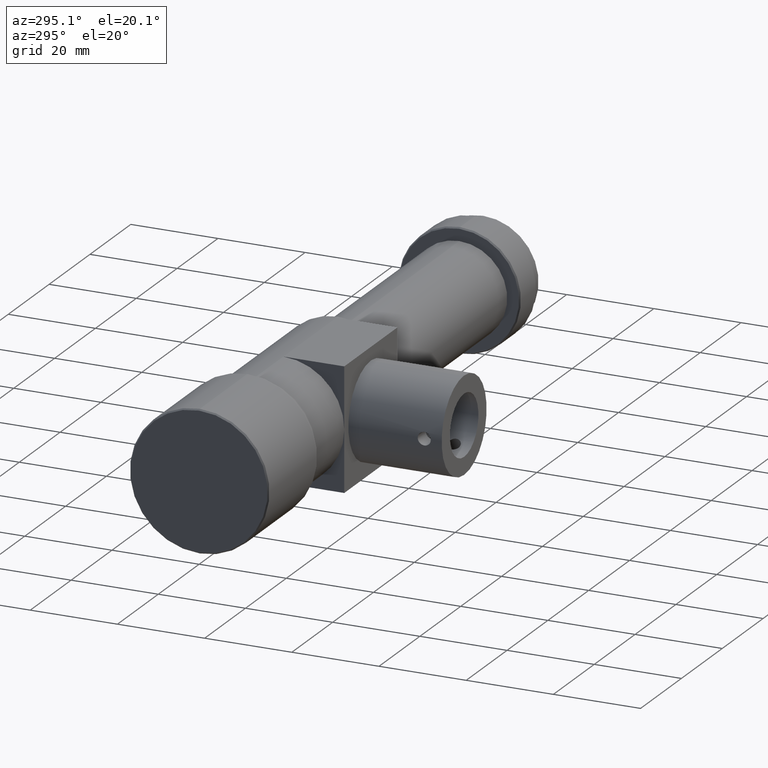
[diagram: clean part render]
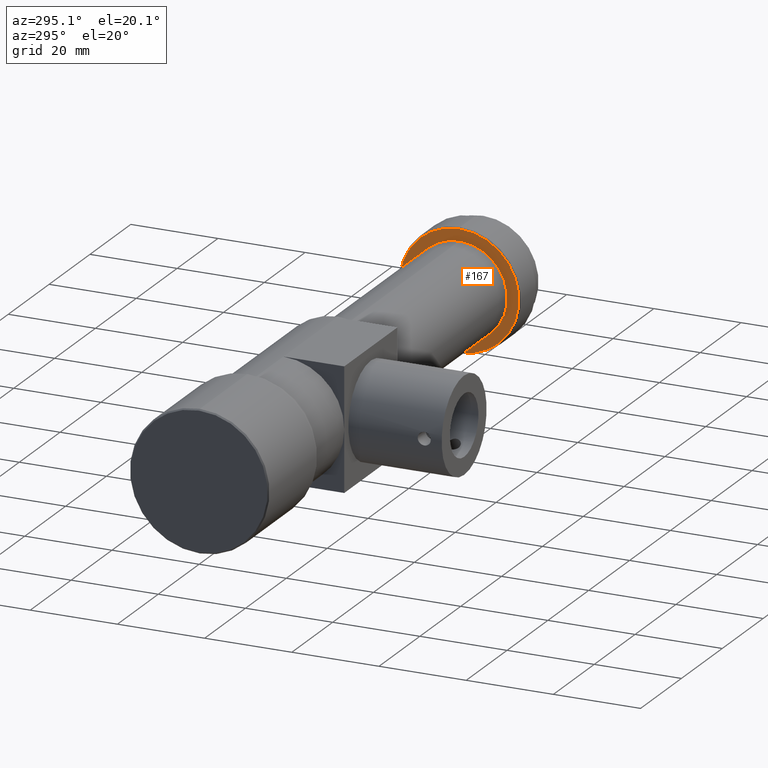
[diagram: same view with one face highlighted and labeled with its STEP entity id]
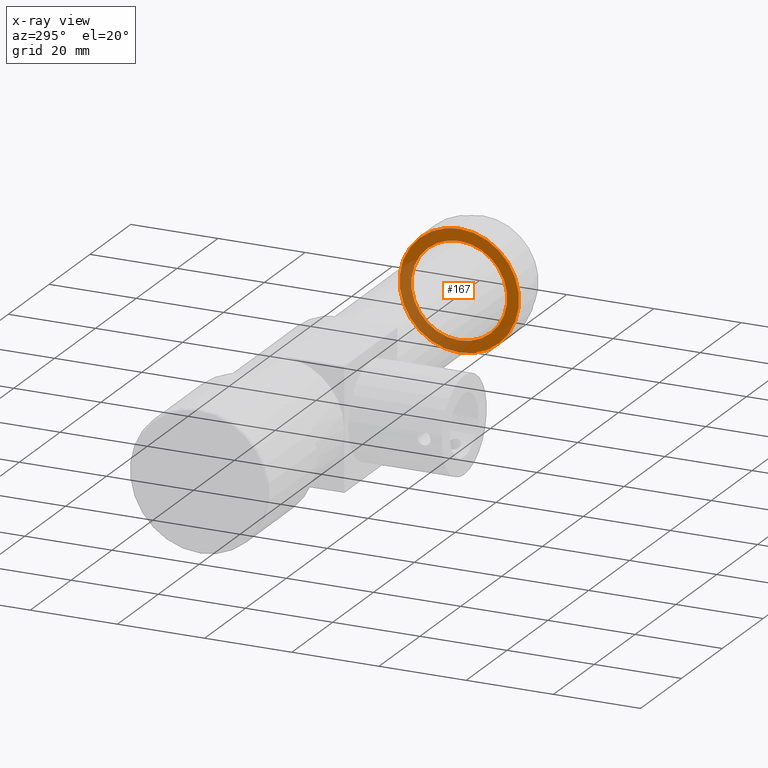
[diagram: x-ray of the same camera — body ghosted, the highlighted face saturated]
A machine part, auxiliary view. The second image highlights one B-rep face of the part: STEP entity #167.
The next image is the same camera in x-ray: the body ghosted, the highlighted face saturated — about 34% of this face is hidden behind the body in this view.
In plain terms, the highlighted planar face has unit normal (1, 0, 0).
Its self-contained STEP definition (entity closure, byte-faithful):
#167 = ADVANCED_FACE ( 'NONE', ( #884, #232 ), #1416, .F. ) ;
#232 = FACE_OUTER_BOUND ( 'NONE', #1790, .T. ) ;
#339 = ORIENTED_EDGE ( 'NONE', *, *, #1321, .F. ) ;
#346 = VERTEX_POINT ( 'NONE', #1149 ) ;
#471 = CARTESIAN_POINT ( 'NONE',  ( 127.3999999999999900, 1.347111479062088600E-015, -11.00000000000000000 ) ) ;
#503 = VERTEX_POINT ( 'NONE', #1379 ) ;
#517 = CARTESIAN_POINT ( 'NONE',  ( 127.3999999999999900, 0.0000000000000000000, 0.0000000000000000000 ) ) ;
#527 = DIRECTION ( 'NONE',  ( -1.000000000000000000, -0.0000000000000000000, -0.0000000000000000000 ) ) ;
#534 = VERTEX_POINT ( 'NONE', #471 ) ;
#544 = AXIS2_PLACEMENT_3D ( 'NONE', #517, #527, #827 ) ;
#547 = CARTESIAN_POINT ( 'NONE',  ( 127.3999999999999900, 11.00000000000000000, 0.0000000000000000000 ) ) ;
#612 = CIRCLE ( 'NONE', #1197, 11.00000000000000000 ) ;
#635 = AXIS2_PLACEMENT_3D ( 'NONE', #1133, #1711, #1725 ) ;
#639 = CARTESIAN_POINT ( 'NONE',  ( 127.3999999999999900, 0.0000000000000000000, 0.0000000000000000000 ) ) ;
#674 = EDGE_CURVE ( 'NONE', #503, #346, #1747, .T. ) ;
#707 = EDGE_CURVE ( 'NONE', #346, #503, #1428, .T. ) ;
#740 = CIRCLE ( 'NONE', #983, 11.00000000000000000 ) ;
#766 = EDGE_CURVE ( 'NONE', #1228, #534, #740, .T. ) ;
#811 = CARTESIAN_POINT ( 'NONE',  ( 127.3999999999999900, 0.0000000000000000000, 11.00000000000000000 ) ) ;
#827 = DIRECTION ( 'NONE',  ( 0.0000000000000000000, 0.0000000000000000000, 1.000000000000000000 ) ) ;
#884 = FACE_BOUND ( 'NONE', #1947, .T. ) ;
#914 = DIRECTION ( 'NONE',  ( 0.0000000000000000000, 0.0000000000000000000, 1.000000000000000000 ) ) ;
#983 = AXIS2_PLACEMENT_3D ( 'NONE', #1564, #1391, #1558 ) ;
#1090 = DIRECTION ( 'NONE',  ( -1.000000000000000000, -0.0000000000000000000, -0.0000000000000000000 ) ) ;
#1133 = CARTESIAN_POINT ( 'NONE',  ( 127.3999999999999900, 0.0000000000000000000, 0.0000000000000000000 ) ) ;
#1149 = CARTESIAN_POINT ( 'NONE',  ( 127.3999999999999900, 1.696135816819084200E-015, 13.70000000000000100 ) ) ;
#1197 = AXIS2_PLACEMENT_3D ( 'NONE', #639, #1090, #914 ) ;
#1203 = ORIENTED_EDGE ( 'NONE', *, *, #766, .F. ) ;
#1228 = VERTEX_POINT ( 'NONE', #811 ) ;
#1236 = ORIENTED_EDGE ( 'NONE', *, *, #674, .T. ) ;
#1321 = EDGE_CURVE ( 'NONE', #534, #1228, #612, .T. ) ;
#1379 = CARTESIAN_POINT ( 'NONE',  ( 127.3999999999999900, 0.0000000000000000000, -13.70000000000000100 ) ) ;
#1391 = DIRECTION ( 'NONE',  ( -1.000000000000000000, -0.0000000000000000000, -0.0000000000000000000 ) ) ;
#1416 = PLANE ( 'NONE',  #1609 ) ;
#1428 = CIRCLE ( 'NONE', #635, 13.70000000000000100 ) ;
#1443 = DIRECTION ( 'NONE',  ( 0.0000000000000000000, 0.0000000000000000000, -1.000000000000000000 ) ) ;
#1558 = DIRECTION ( 'NONE',  ( 0.0000000000000000000, 0.0000000000000000000, 1.000000000000000000 ) ) ;
#1564 = CARTESIAN_POINT ( 'NONE',  ( 127.3999999999999900, 0.0000000000000000000, 0.0000000000000000000 ) ) ;
#1607 = DIRECTION ( 'NONE',  ( 1.000000000000000000, 0.0000000000000000000, 0.0000000000000000000 ) ) ;
#1609 = AXIS2_PLACEMENT_3D ( 'NONE', #547, #1607, #1443 ) ;
#1711 = DIRECTION ( 'NONE',  ( -1.000000000000000000, -0.0000000000000000000, -0.0000000000000000000 ) ) ;
#1725 = DIRECTION ( 'NONE',  ( 0.0000000000000000000, 0.0000000000000000000, 1.000000000000000000 ) ) ;
#1747 = CIRCLE ( 'NONE', #544, 13.70000000000000100 ) ;
#1790 = EDGE_LOOP ( 'NONE', ( #1236, #1830 ) ) ;
#1830 = ORIENTED_EDGE ( 'NONE', *, *, #707, .T. ) ;
#1947 = EDGE_LOOP ( 'NONE', ( #1203, #339 ) ) ;